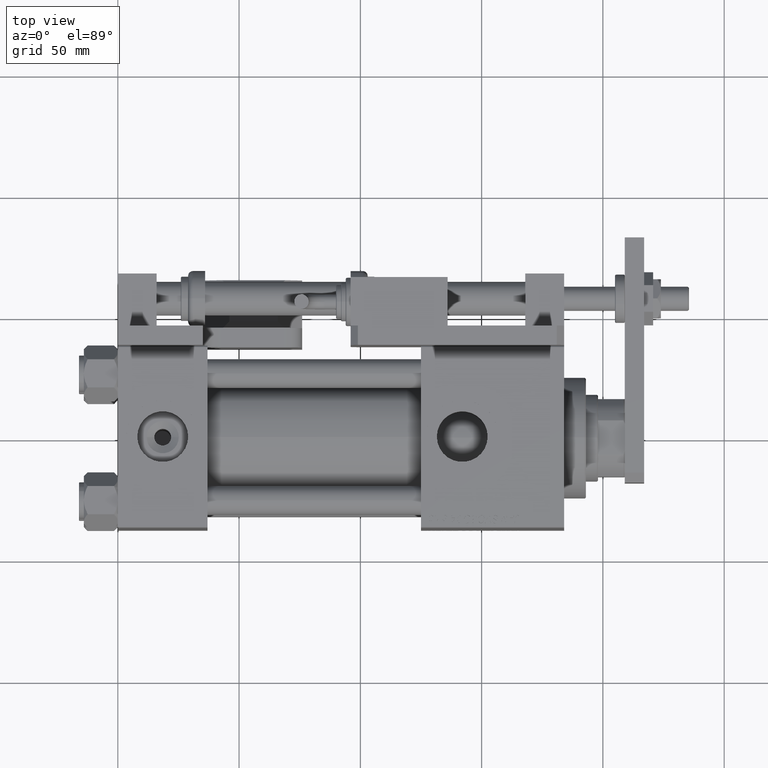
[diagram: clean part render]
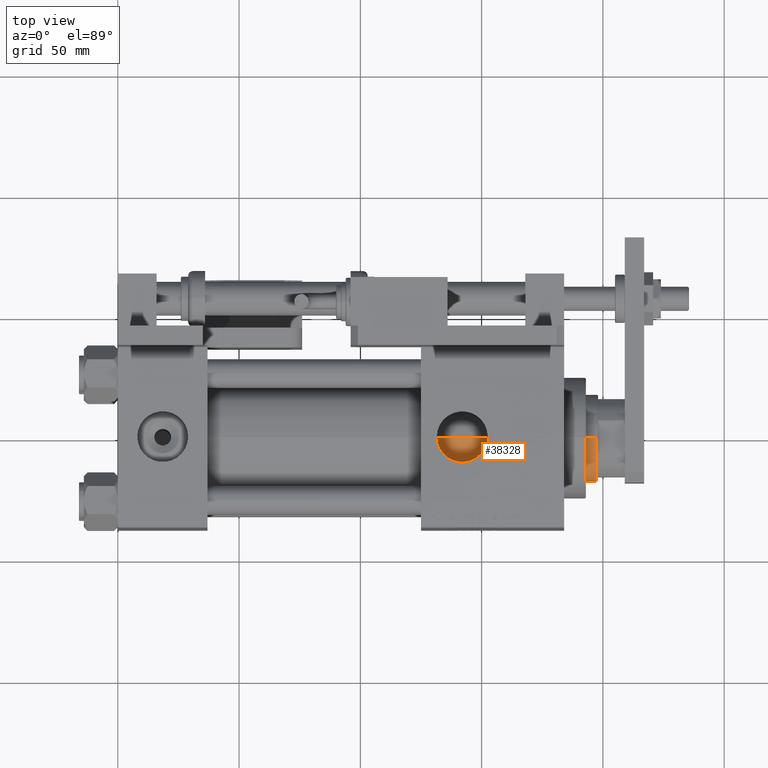
[diagram: same view with one face highlighted and labeled with its STEP entity id]
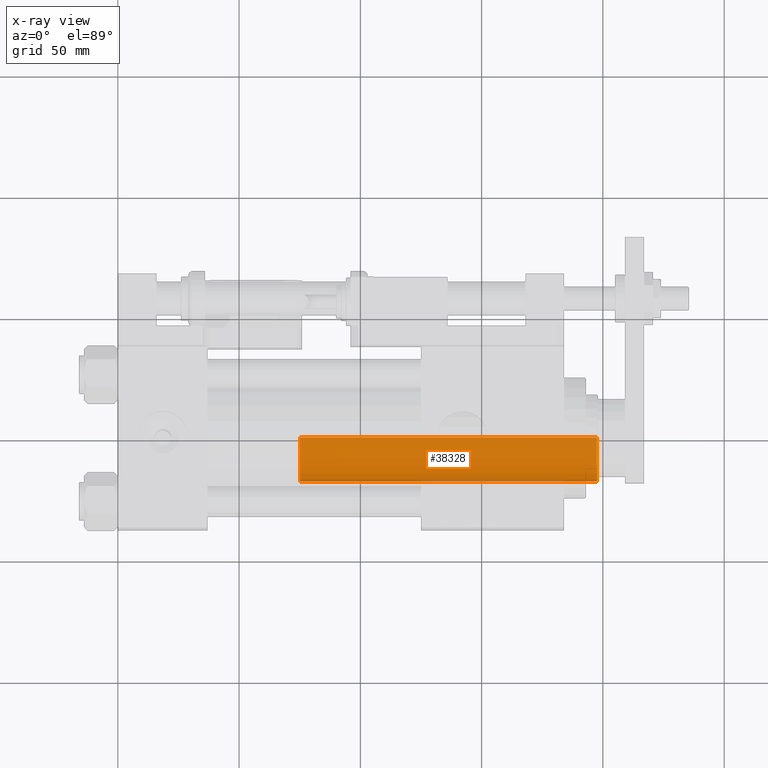
[diagram: x-ray of the same camera — body ghosted, the highlighted face saturated]
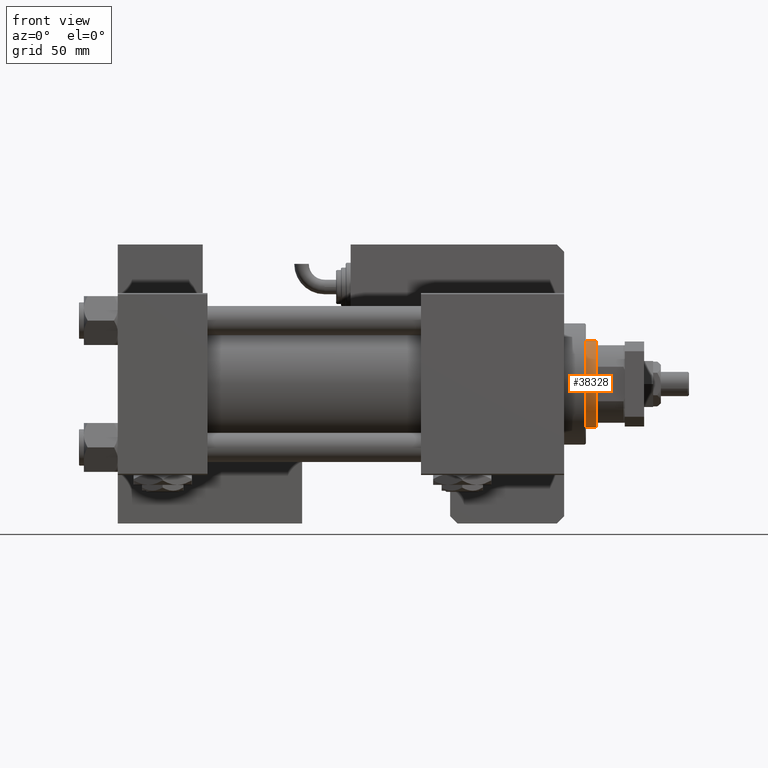
[diagram: same view with one face highlighted and labeled with its STEP entity id]
A machine part, top view. The second image highlights one B-rep face of the part: STEP entity #38328.
The next image is the same camera in x-ray: the body ghosted, the highlighted face saturated — about 2% of this face is hidden behind the body in this view.
A second angle (front view) of the same face is appended — the face is thin or edge-on in the first view.
In plain terms, the highlighted cylindrical surface (partial cylindrical patch) has radius 18 mm, axis along (-1, 0, 0).
Its self-contained STEP definition (entity closure, byte-faithful):
#1352 = AXIS2_PLACEMENT_3D ( 'NONE', #48479, #12709, #30591 ) ;
#2709 = CARTESIAN_POINT ( 'NONE',  ( -18.00000000000000000, 0.000000000000000000, 161.0000000000000000 ) ) ;
#3047 = EDGE_CURVE ( 'NONE', #39487, #22495, #45665, .T. ) ;
#3229 = CARTESIAN_POINT ( 'NONE',  ( 0.000000000000000000, 0.000000000000000000, 38.00000000000000000 ) ) ;
#5202 = EDGE_CURVE ( 'NONE', #22495, #50871, #30349, .T. ) ;
#7029 = CARTESIAN_POINT ( 'NONE',  ( 18.00000000000000000, 2.204364238465235428E-15, 38.00000000000000000 ) ) ;
#7294 = ORIENTED_EDGE ( 'NONE', *, *, #3047, .T. ) ;
#7454 = AXIS2_PLACEMENT_3D ( 'NONE', #3229, #12855, #48329 ) ;
#10030 = VECTOR ( 'NONE', #57023, 1000.000000000000000 ) ;
#11492 = LINE ( 'NONE', #2709, #34820 ) ;
#12709 = DIRECTION ( 'NONE',  ( -0.000000000000000000, -0.000000000000000000, -1.000000000000000000 ) ) ;
#12855 = DIRECTION ( 'NONE',  ( 0.000000000000000000, 0.000000000000000000, 1.000000000000000000 ) ) ;
#14871 = EDGE_CURVE ( 'NONE', #39487, #28710, #11492, .T. ) ;
#17820 = DIRECTION ( 'NONE',  ( 1.000000000000000000, 0.000000000000000000, 0.000000000000000000 ) ) ;
#19219 = CARTESIAN_POINT ( 'NONE',  ( 18.00000000000000000, 2.204364238465235428E-15, 160.4999999999999716 ) ) ;
#20561 = DIRECTION ( 'NONE',  ( -0.000000000000000000, -0.000000000000000000, -1.000000000000000000 ) ) ;
#21129 = ORIENTED_EDGE ( 'NONE', *, *, #53626, .T. ) ;
#21911 = CARTESIAN_POINT ( 'NONE',  ( 0.000000000000000000, 0.000000000000000000, 160.4999999999999716 ) ) ;
#22495 = VERTEX_POINT ( 'NONE', #19219 ) ;
#25545 = EDGE_LOOP ( 'NONE', ( #7294, #44123, #21129, #57566 ) ) ;
#26017 = DIRECTION ( 'NONE',  ( 0.000000000000000000, 0.000000000000000000, -1.000000000000000000 ) ) ;
#28267 = CARTESIAN_POINT ( 'NONE',  ( -18.00000000000000000, 0.000000000000000000, 38.00000000000000000 ) ) ;
#28710 = VERTEX_POINT ( 'NONE', #28267 ) ;
#30349 = LINE ( 'NONE', #48224, #10030 ) ;
#30591 = DIRECTION ( 'NONE',  ( -1.000000000000000000, 0.000000000000000000, 0.000000000000000000 ) ) ;
#34820 = VECTOR ( 'NONE', #20561, 1000.000000000000000 ) ;
#37263 = AXIS2_PLACEMENT_3D ( 'NONE', #21911, #26017, #17820 ) ;
#38328 = ADVANCED_FACE ( 'NONE', ( #57287 ), #52875, .T. ) ;
#39487 = VERTEX_POINT ( 'NONE', #53182 ) ;
#44123 = ORIENTED_EDGE ( 'NONE', *, *, #5202, .T. ) ;
#45665 = CIRCLE ( 'NONE', #37263, 18.00000000000000000 ) ;
#48224 = CARTESIAN_POINT ( 'NONE',  ( 18.00000000000000000, 2.204364238465235428E-15, 161.0000000000000000 ) ) ;
#48329 = DIRECTION ( 'NONE',  ( 1.000000000000000000, 0.000000000000000000, 0.000000000000000000 ) ) ;
#48479 = CARTESIAN_POINT ( 'NONE',  ( 0.000000000000000000, 0.000000000000000000, 161.0000000000000000 ) ) ;
#48668 = CIRCLE ( 'NONE', #7454, 18.00000000000000000 ) ;
#50871 = VERTEX_POINT ( 'NONE', #7029 ) ;
#52875 = CYLINDRICAL_SURFACE ( 'NONE', #1352, 18.00000000000000000 ) ;
#53182 = CARTESIAN_POINT ( 'NONE',  ( -18.00000000000000000, 0.000000000000000000, 160.4999999999999716 ) ) ;
#53626 = EDGE_CURVE ( 'NONE', #50871, #28710, #48668, .T. ) ;
#57023 = DIRECTION ( 'NONE',  ( -0.000000000000000000, -0.000000000000000000, -1.000000000000000000 ) ) ;
#57287 = FACE_OUTER_BOUND ( 'NONE', #25545, .T. ) ;
#57566 = ORIENTED_EDGE ( 'NONE', *, *, #14871, .F. ) ;